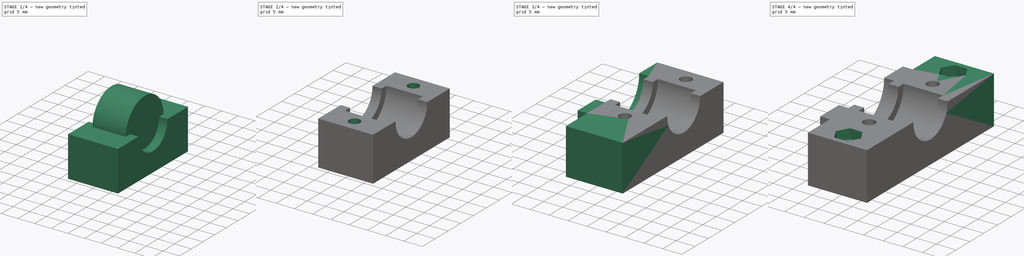
[diagram: build sequence overview — one tinted view per stage of 4, left to right]
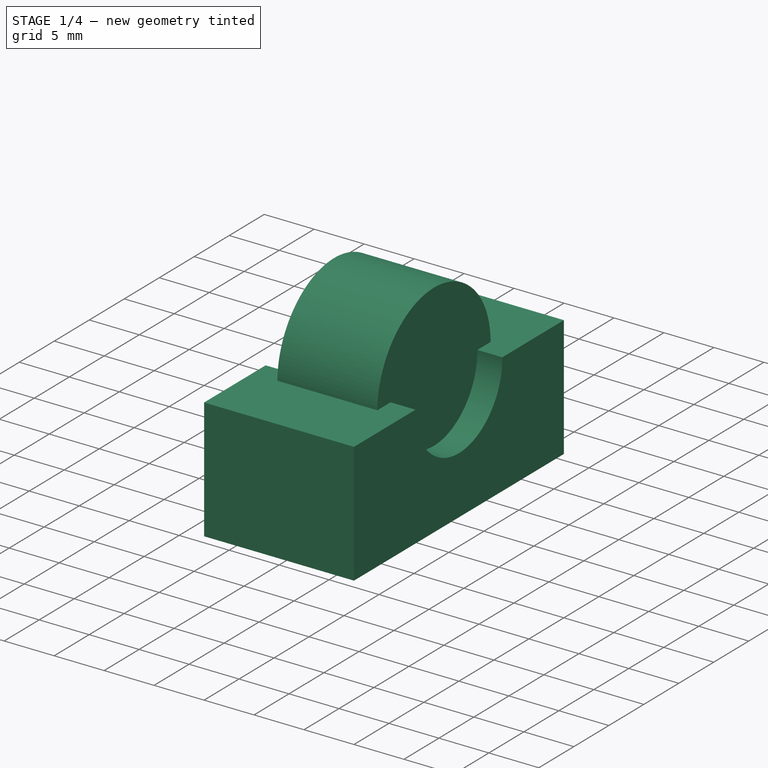
[diagram: stage 1 of 4 — iso view after this stage's code; geometry added in this stage tinted green]
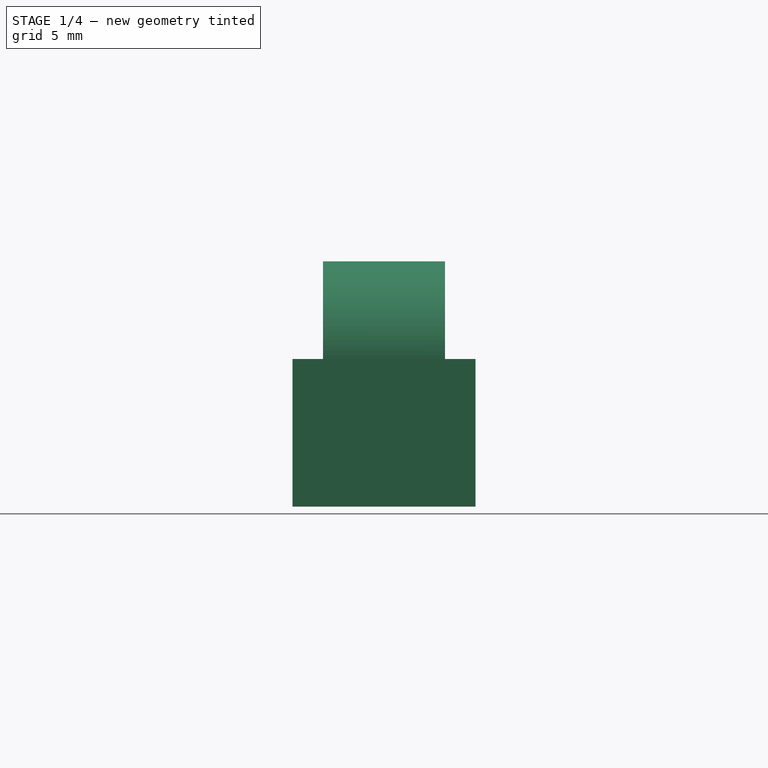
[diagram: stage 1 of 4 — front view after this stage's code; geometry added in this stage tinted green]
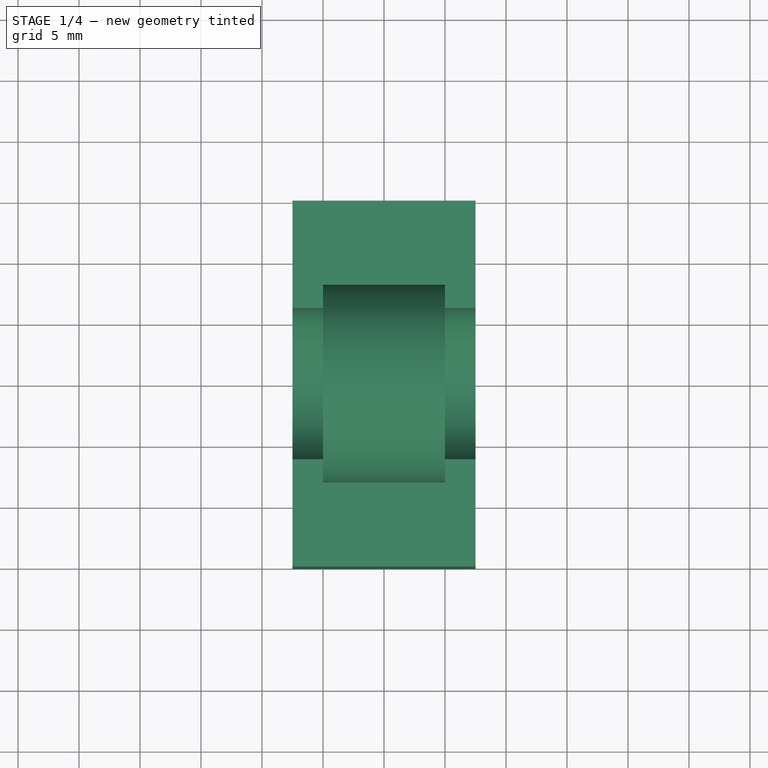
[diagram: stage 1 of 4 — top view after this stage's code; geometry added in this stage tinted green]
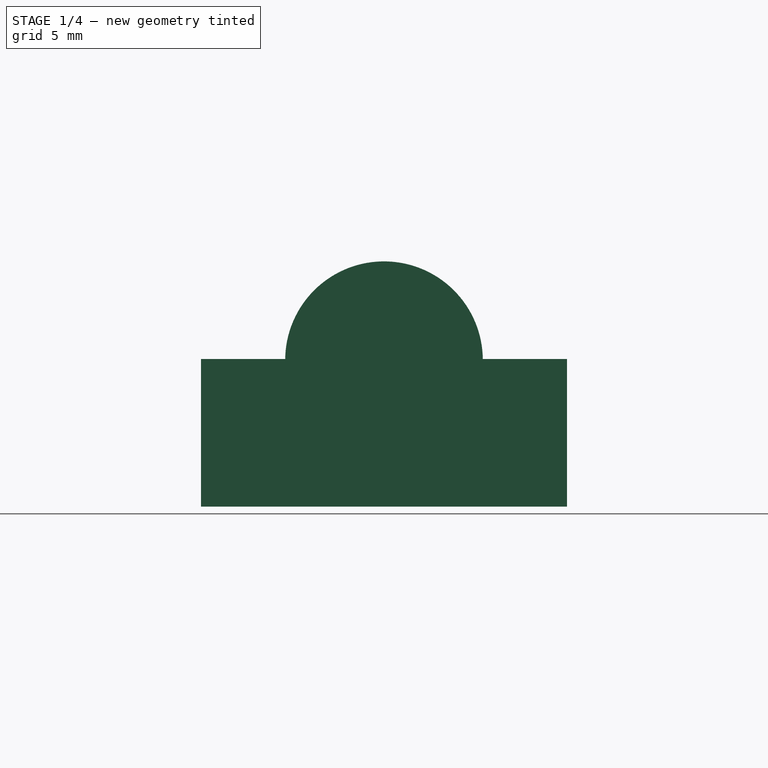
[diagram: stage 1 of 4 — right view after this stage's code; geometry added in this stage tinted green]
FCSTD DOCUMENT  (FreeCAD 0.16R6700 (Git))
Label: Bearing Support Botton
License: FreeArt
LicenseURL: http://artlibre.org/licence/lal
objects: Drawing::FeatureViewPython×23, Sketcher::SketchObject×11, PartDesign::Pocket×6, PartDesign::Pad×5, Drawing::FeatureViewPart×4, Part::Cut×1, Drawing::FeaturePage×1
note: 34 computed .brp shape members not serialized (recipe doc carries the construction recipe); baked Part::Feature solids carry a one-line shape summary decoded from their .brp

FEATURE [Sketcher::SketchObject] Sketch
  sketch-geometry (4):
    g0: LineSegment StartX=-7.5 StartY=15 StartZ=0 EndX=7.5 EndY=15 EndZ=0
    g1: LineSegment StartX=7.5 StartY=15 StartZ=0 EndX=7.5 EndY=-15 EndZ=0
    g2: LineSegment StartX=7.5 StartY=-15 StartZ=0 EndX=-7.5 EndY=-15 EndZ=0
    g3: LineSegment StartX=-7.5 StartY=-15 StartZ=0 EndX=-7.5 EndY=15 EndZ=0
  constraints (12):
    c: Coincident(g0,g1)
    c: Coincident(g1,g2)
    c: Coincident(g2,g3)
    c: Coincident(g3,g0)
    c: Horizontal(g2)
    c: Vertical(g1)
    c: Vertical(g3)
    c: Parallel(g0,g2)
    c: Symmetric(g0,g2,g-1)
    c: Symmetric(g0,g0,g-2)
    c: DistanceY(g3,g3) = 30
    c: DistanceX(g0,g0) = 15
FEATURE [PartDesign::Pad] Pad
  Length = 12.1
  Length2 = 100
  Sketch = -> Sketch
  Type = 0
FEATURE [Sketcher::SketchObject] Sketch001
  Placement = pos=(7.5,0,0) rot=(0.57735,0.57735,0.57735;2.0944rad)
  Support = -> Pad [Face2]
  sketch-geometry (1):
    g0: Circle CenterX=0 CenterY=12 CenterZ=0 NormalX=0 NormalY=0 NormalZ=1 Radius=6.2
  constraints (3):
    c: PointOnObject(g0,g-2)
    c: DistanceY(g-1,g0) = 12
    c: Radius(g0) = 6.2
FEATURE [PartDesign::Pocket] Pocket
  Length = 5
  Sketch = -> Sketch001
  Type = 1
FEATURE [Sketcher::SketchObject] Sketch002
  Placement = pos=(0,0,0) rot=(0.57735,0.57735,0.57735;2.0944rad)
  sketch-geometry (1):
    g0: Circle CenterX=0 CenterY=12 CenterZ=0 NormalX=0 NormalY=0 NormalZ=1 Radius=8.1
  constraints (3):
    c: PointOnObject(g0,g-2)
    c: DistanceY(g-1,g0) = 12
    c: Radius(g0) = 8.1
FEATURE [PartDesign::Pad] Pad001
  Length = 10
  Length2 = 100
  Midplane = true
  Placement = pos=(0,0,0) rot=(0.57735,0.57735,0.57735;2.0944rad)
  Sketch = -> Sketch002
  Type = 0
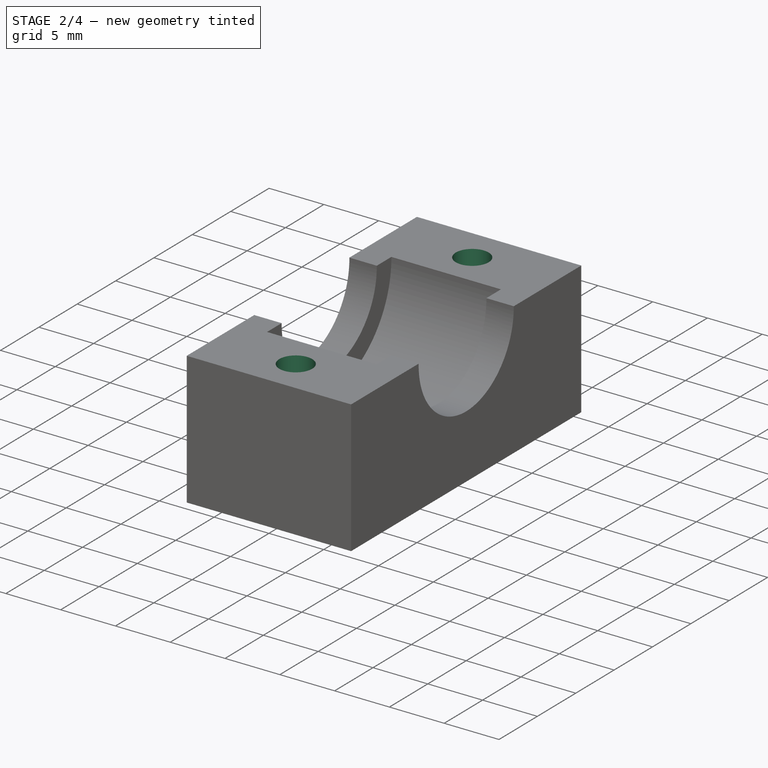
[diagram: stage 2 of 4 — iso view after this stage's code; geometry added in this stage tinted green]
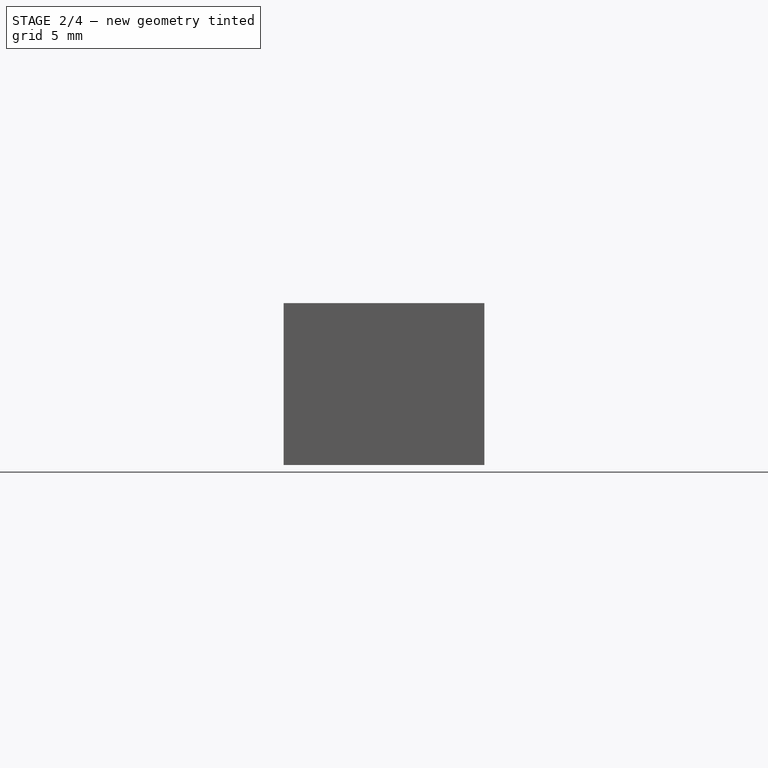
[diagram: stage 2 of 4 — front view after this stage's code; geometry added in this stage tinted green]
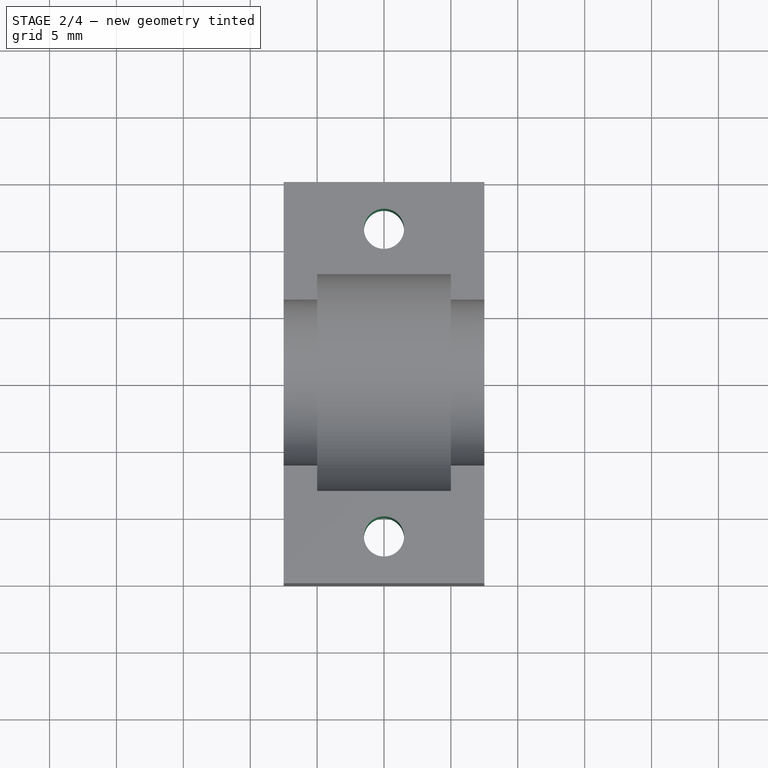
[diagram: stage 2 of 4 — top view after this stage's code; geometry added in this stage tinted green]
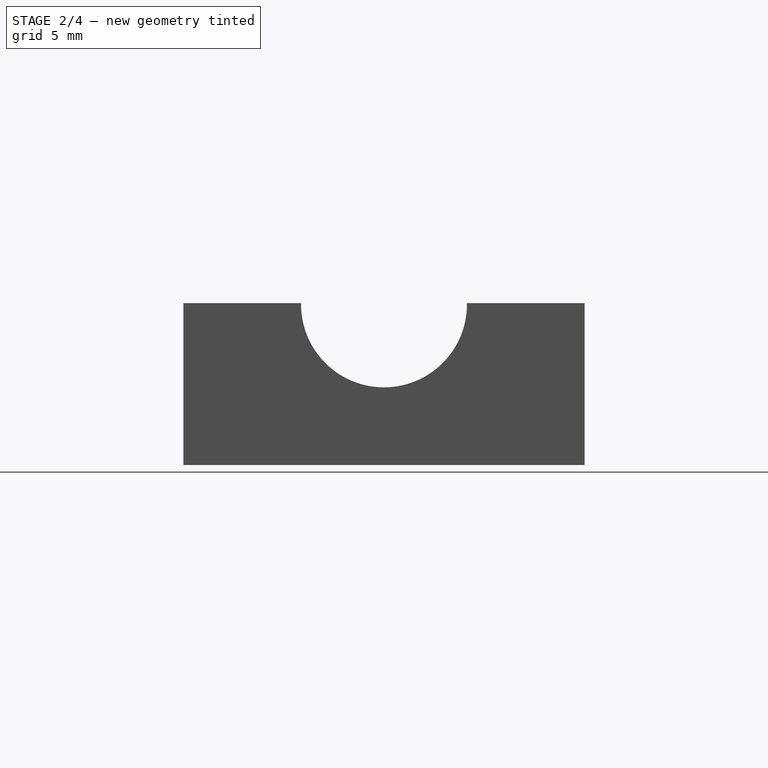
[diagram: stage 2 of 4 — right view after this stage's code; geometry added in this stage tinted green]
FEATURE [Part::Cut] Cut
  Base = -> Pocket
  Tool = -> Pad001
FEATURE [Sketcher::SketchObject] Sketch003
  Placement = pos=(0,0,0) rot=(1,0,0;3.14159rad)
  Support = -> Cut [Face4]
  sketch-geometry (2):
    g0: Circle CenterX=0 CenterY=11.5 CenterZ=0 NormalX=0 NormalY=0 NormalZ=1 Radius=1.5
    g1: Circle CenterX=0 CenterY=-11.5 CenterZ=0 NormalX=0 NormalY=0 NormalZ=1 Radius=1.5
  constraints (6):
    c: PointOnObject(g0,g-2)
    c: Distance(g-1,g0) = 11.5
    c: Radius(g0) = 1.5
    c: PointOnObject(g1,g-2)
    c: Distance(g-1,g1) = 11.5
    c: Radius(g1) = 1.5
FEATURE [PartDesign::Pocket] Pocket001
  Length = 5
  Sketch = -> Sketch003
  Type = 1
FEATURE [Sketcher::SketchObject] Sketch004
  Placement = pos=(0,0,0) rot=(1,0,0;3.14159rad)
  Support = -> Pocket001 [Face4]
  sketch-geometry (14):
    g0: LineSegment StartX=3.2 StartY=11.5 StartZ=0 EndX=1.6 EndY=14.2713 EndZ=0
    g1: LineSegment StartX=1.6 StartY=14.2713 StartZ=0 EndX=-1.6 EndY=14.2713 EndZ=0
    g2: LineSegment StartX=-1.6 StartY=14.2713 StartZ=0 EndX=-3.2 EndY=11.5 EndZ=0
    g3: LineSegment StartX=-3.2 StartY=11.5 StartZ=0 EndX=-1.6 EndY=8.72872 EndZ=0
    g4: LineSegment StartX=-1.6 StartY=8.72872 StartZ=0 EndX=1.6 EndY=8.72872 EndZ=0
    g5: LineSegment StartX=1.6 StartY=8.72872 StartZ=0 EndX=3.2 EndY=11.5 EndZ=0
    g6: Circle [constr] CenterX=0 CenterY=11.5 CenterZ=0 NormalX=0 NormalY=0 NormalZ=1 Radius=3.2
    g7: LineSegment StartX=1.6 StartY=-14.2713 StartZ=0 EndX=3.2 EndY=-11.5 EndZ=0
    g8: LineSegment StartX=3.2 StartY=-11.5 StartZ=0 EndX=1.6 EndY=-8.72872 EndZ=0
    g9: LineSegment StartX=1.6 StartY=-8.72872 StartZ=0 EndX=-1.6 EndY=-8.72872 EndZ=0
    g10: LineSegment StartX=-1.6 StartY=-8.72872 StartZ=0 EndX=-3.2 EndY=-11.5 EndZ=0
    g11: LineSegment StartX=-3.2 StartY=-11.5 StartZ=0 EndX=-1.6 EndY=-14.2713 EndZ=0
    g12: LineSegment StartX=-1.6 StartY=-14.2713 StartZ=0 EndX=1.6 EndY=-14.2713 EndZ=0
    g13: Circle [constr] CenterX=0 CenterY=-11.5 CenterZ=0 NormalX=0 NormalY=0 NormalZ=1 Radius=3.2
  constraints (34):
    c: Coincident(g0,g1)
    c: Coincident(g1,g2)
    c: Coincident(g2,g3)
    c: Coincident(g3,g4)
    c: Coincident(g4,g5)
    c: Coincident(g5,g0)
    c: Equal(g0, g1-g5) x5
    c: PointOnObject(g0,g6)
    c: PointOnObject(g1,g6)
    c: PointOnObject(g2,g6)
    c: PointOnObject(g3,g6)
    c: PointOnObject(g4,g6)
    c: PointOnObject(g5,g6)
    c: PointOnObject(g6,g-2)
    c: Distance(g-1,g6) = 11.5
    c: Parallel(g-1,g4)
    c: Radius(g6) = 3.2
    c: Coincident(g7,g8)
    c: Coincident(g8,g9)
    c: Coincident(g9,g10)
    c: Coincident(g10,g11)
    c: Coincident(g11,g12)
    c: Coincident(g12,g7)
    c: Equal(g7, g8-g12) x5
    c: PointOnObject(g7,g13)
    c: PointOnObject(g8,g13)
    c: PointOnObject(g9,g13)
    c: PointOnObject(g10,g13)
    c: PointOnObject(g11,g13)
    c: PointOnObject(g12,g13)
    c: PointOnObject(g13,g-2)
    c: Distance(g-1,g13) = 11.5
    c: Parallel(g9,g-1)
    c: Radius(g13) = 3.2
FEATURE [PartDesign::Pocket] Pocket002
  Length = 2.5
  Sketch = -> Sketch004
  Type = 0
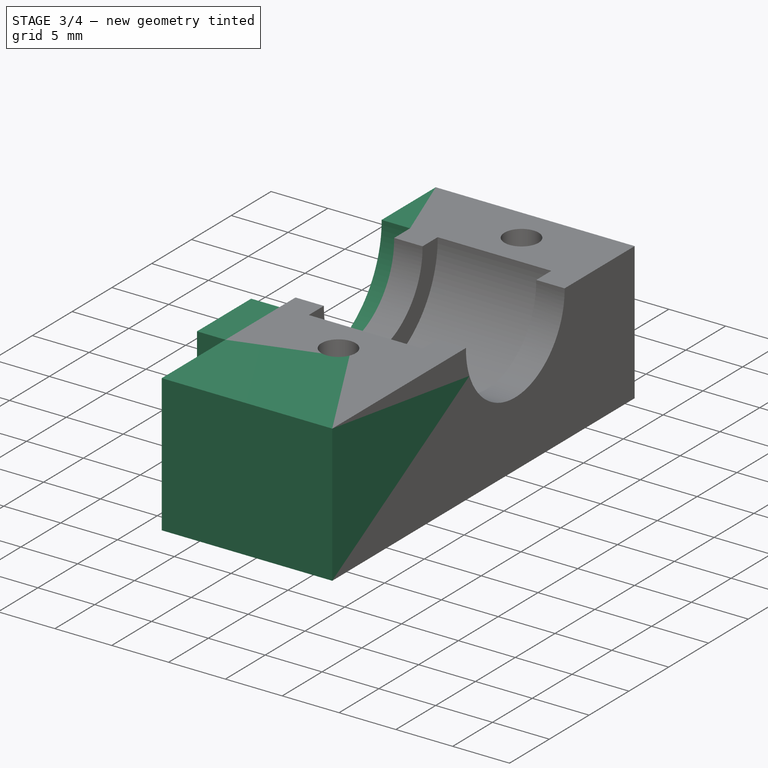
[diagram: stage 3 of 4 — iso view after this stage's code; geometry added in this stage tinted green]
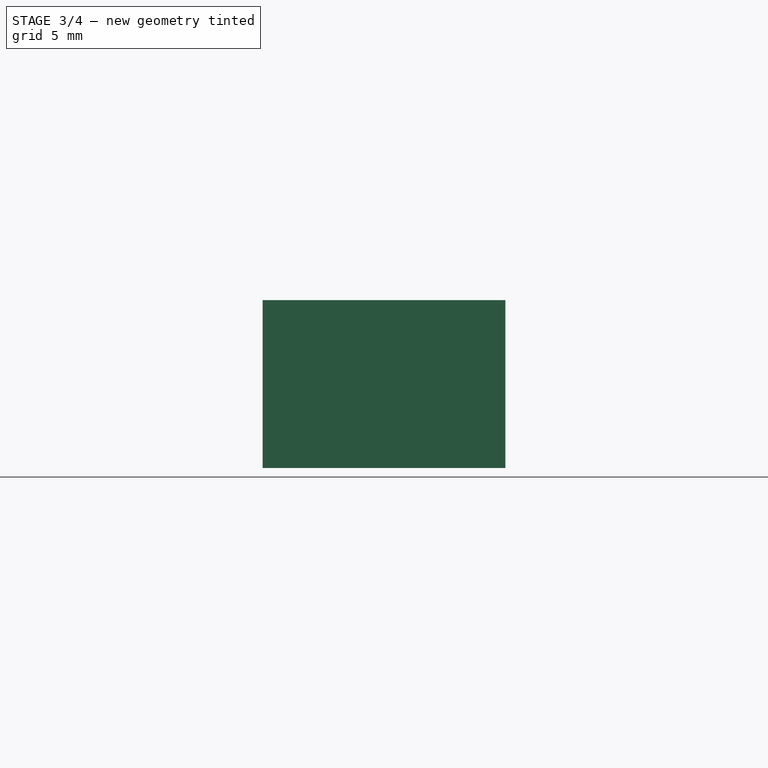
[diagram: stage 3 of 4 — front view after this stage's code; geometry added in this stage tinted green]
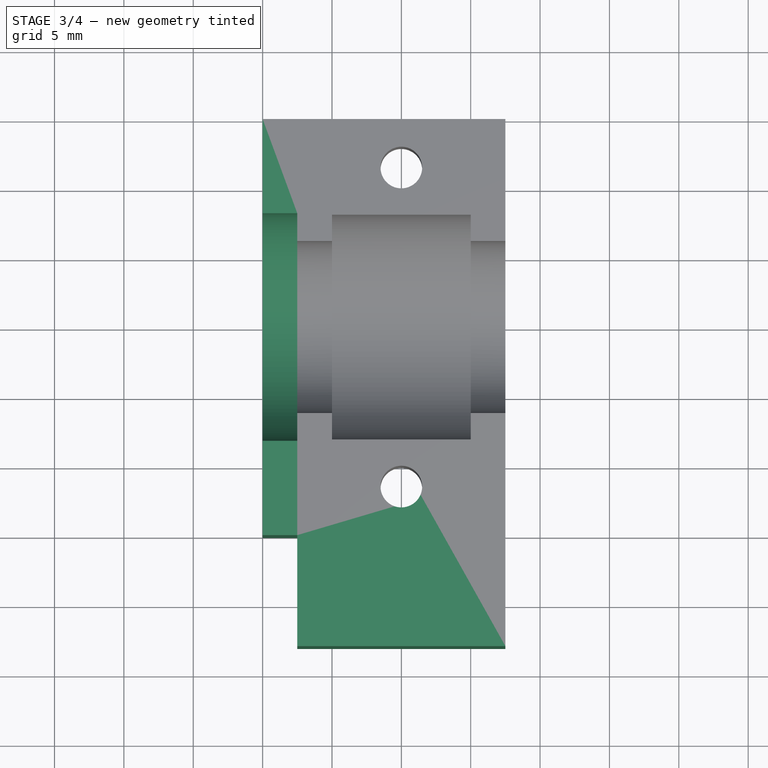
[diagram: stage 3 of 4 — top view after this stage's code; geometry added in this stage tinted green]
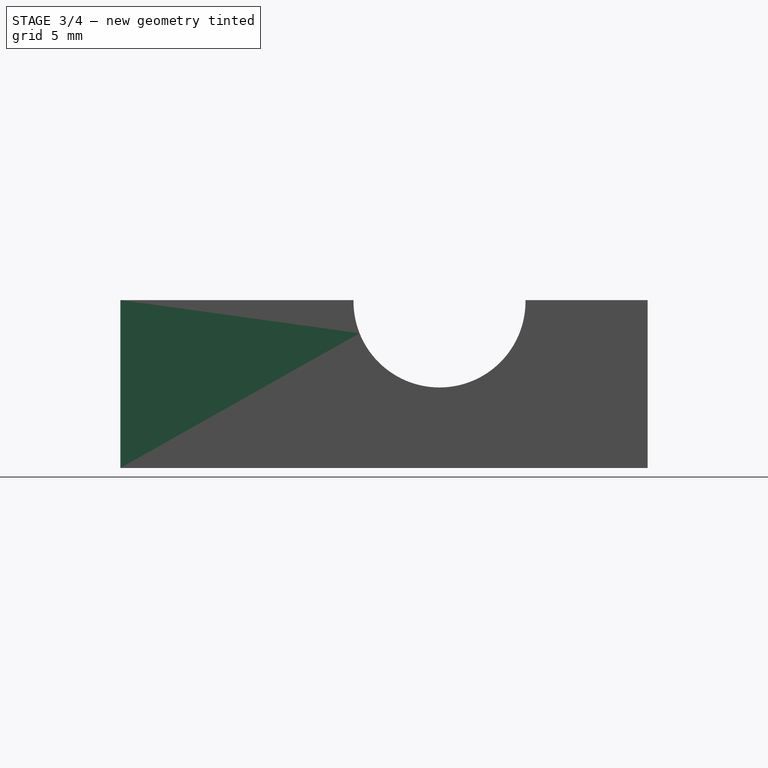
[diagram: stage 3 of 4 — right view after this stage's code; geometry added in this stage tinted green]
FEATURE [Sketcher::SketchObject] Sketch005
  Placement = pos=(-7.5,0,0) rot=(0.57735,-0.57735,-0.57735;2.0944rad)
  Support = -> Pocket002 [Face2]
  sketch-geometry (4):
    g0: LineSegment StartX=-15 StartY=12.1 StartZ=0 EndX=15 EndY=12.1 EndZ=0
    g1: LineSegment StartX=15 StartY=12.1 StartZ=0 EndX=15 EndY=0 EndZ=0
    g2: LineSegment StartX=15 StartY=0 StartZ=0 EndX=-15 EndY=0 EndZ=0
    g3: LineSegment StartX=-15 StartY=0 StartZ=0 EndX=-15 EndY=12.1 EndZ=0
  constraints (14):
    c: Coincident(g0,g1)
    c: Coincident(g1,g2)
    c: Coincident(g2,g3)
    c: Coincident(g3,g0)
    c: Horizontal(g0)
    c: Horizontal(g2)
    c: Vertical(g1)
    c: Vertical(g3)
    c: Equal(g2,g0)
    c: Equal(g3,g1)
    c: Symmetric(g1,g2,g-2)
    c: PointOnObject(g2,g-1)
    c: DistanceX(g2,g2) = 30
    c: DistanceY(g1,g1) = 12.1
FEATURE [PartDesign::Pad] Pad002
  Length = 2.5
  Length2 = 100
  Sketch = -> Sketch005
  Type = 0
FEATURE [Sketcher::SketchObject] Sketch006
  Placement = pos=(-10,0,0) rot=(0.57735,-0.57735,-0.57735;2.0944rad)
  Support = -> Pad002 [Face9]
  sketch-geometry (1):
    g0: Circle CenterX=0 CenterY=12.0166 CenterZ=0 NormalX=0 NormalY=0 NormalZ=1 Radius=8.2
  constraints (2):
    c: PointOnObject(g0,g-2)
    c: Radius(g0) = 8.2
FEATURE [PartDesign::Pocket] Pocket003
  Length = 2.5
  Sketch = -> Sketch006
  Type = 0
FEATURE [Sketcher::SketchObject] Sketch007
  Placement = pos=(0,-15,0) rot=(1,0,0;1.5708rad)
  Support = -> Pocket003 [Face7]
  sketch-geometry (4):
    g0: LineSegment StartX=-7.5 StartY=12.1 StartZ=0 EndX=7.5 EndY=12.1 EndZ=0
    g1: LineSegment StartX=7.5 StartY=12.1 StartZ=0 EndX=7.5 EndY=0 EndZ=0
    g2: LineSegment StartX=7.5 StartY=0 StartZ=0 EndX=-7.5 EndY=0 EndZ=0
    g3: LineSegment StartX=-7.5 StartY=0 StartZ=0 EndX=-7.5 EndY=12.1 EndZ=0
  constraints (13):
    c: Coincident(g0,g1)
    c: Coincident(g1,g2)
    c: Coincident(g2,g3)
    c: Coincident(g3,g0)
    c: Horizontal(g0)
    c: Vertical(g1)
    c: Vertical(g3)
    c: Equal(g2,g0)
    c: Equal(g3,g1)
    c: PointOnObject(g1,g-1)
    c: Symmetric(g1,g2,g-2)
    c: DistanceY(g1,g1) = 12.1
    c: DistanceX(g2,g2) = 15
FEATURE [PartDesign::Pad] Pad003
  Length = 8
  Length2 = 100
  Sketch = -> Sketch007
  Type = 0
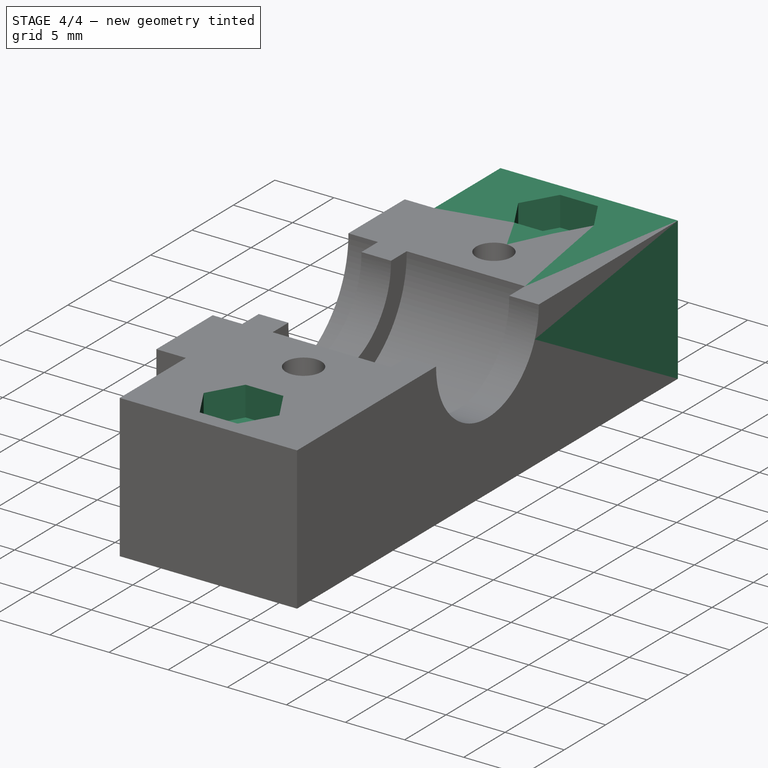
[diagram: stage 4 of 4 — iso view after this stage's code; geometry added in this stage tinted green]
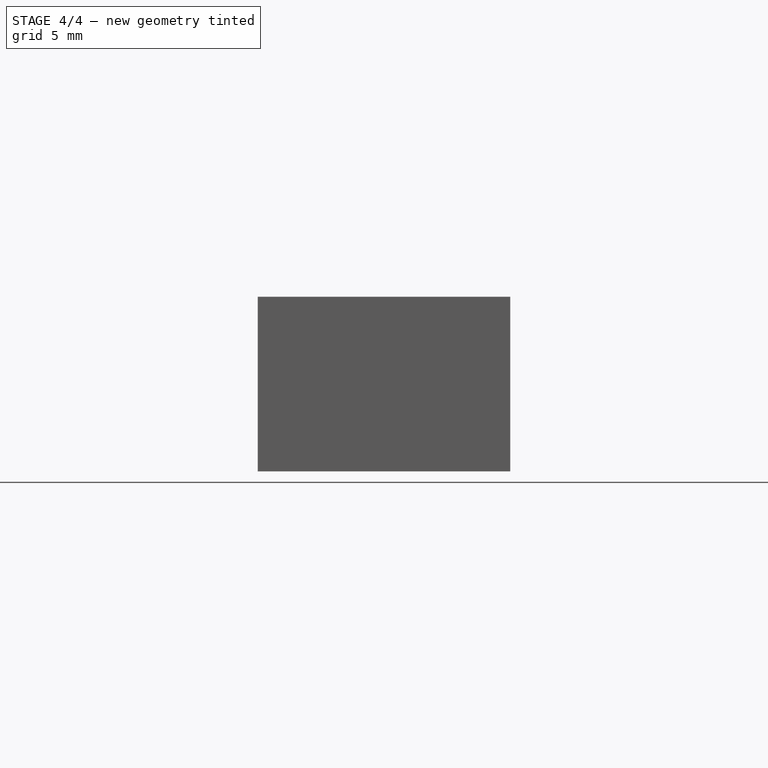
[diagram: stage 4 of 4 — front view after this stage's code; geometry added in this stage tinted green]
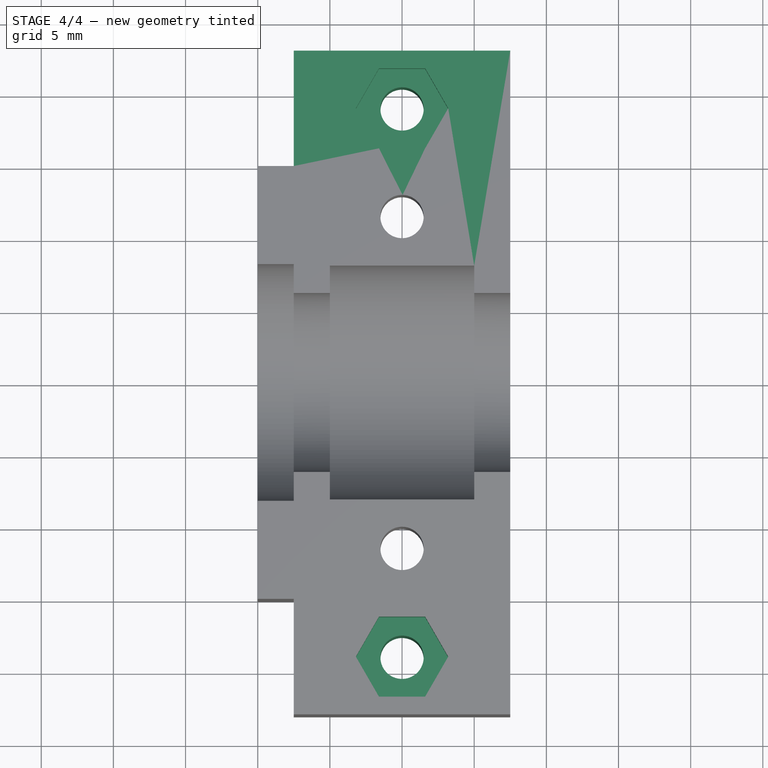
[diagram: stage 4 of 4 — top view after this stage's code; geometry added in this stage tinted green]
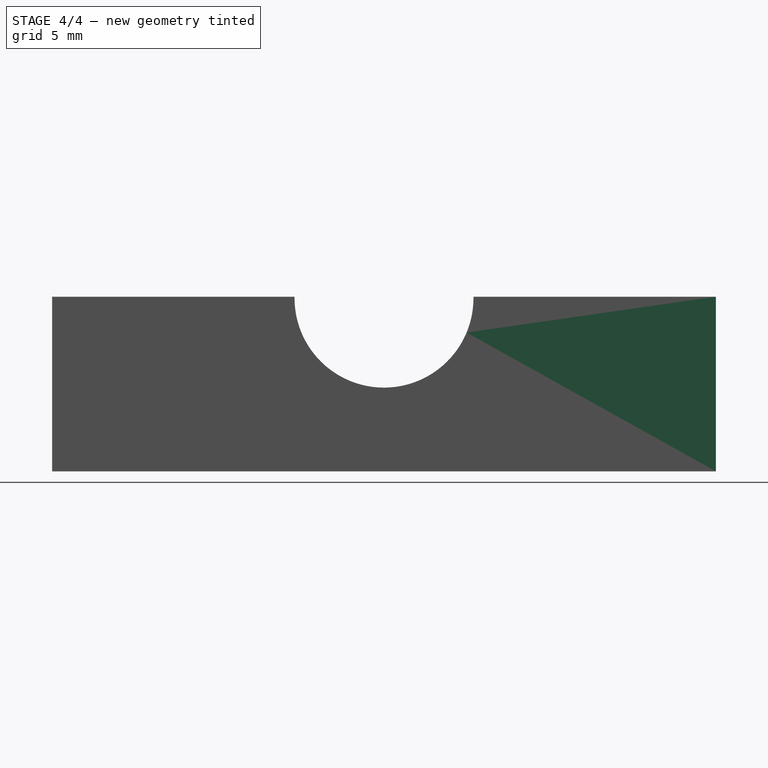
[diagram: stage 4 of 4 — right view after this stage's code; geometry added in this stage tinted green]
FEATURE [Sketcher::SketchObject] Sketch008
  Placement = pos=(0,15,0) rot=(0,0.707107,0.707107;3.14159rad)
  Support = -> Pad003 [Face11]
  sketch-geometry (4):
    g0: LineSegment StartX=-7.5 StartY=12.1 StartZ=0 EndX=7.5 EndY=12.1 EndZ=0
    g1: LineSegment StartX=7.5 StartY=12.1 StartZ=0 EndX=7.5 EndY=0 EndZ=0
    g2: LineSegment StartX=7.5 StartY=0 StartZ=0 EndX=-7.5 EndY=0 EndZ=0
    g3: LineSegment StartX=-7.5 StartY=0 StartZ=0 EndX=-7.5 EndY=12.1 EndZ=0
  constraints (14):
    c: Coincident(g0,g1)
    c: Coincident(g1,g2)
    c: Coincident(g2,g3)
    c: Coincident(g3,g0)
    c: Horizontal(g0)
    c: Horizontal(g2)
    c: Vertical(g1)
    c: Vertical(g3)
    c: Equal(g2,g0)
    c: Equal(g3,g1)
    c: PointOnObject(g1,g-1)
    c: Symmetric(g2,g1,g-2)
    c: DistanceY(g3,g3) = 12.1
    c: DistanceX(g2,g2) = 15
FEATURE [PartDesign::Pad] Pad004
  Length = 8
  Length2 = 100
  Sketch = -> Sketch008
  Type = 0
FEATURE [Sketcher::SketchObject] Sketch009
  Placement = pos=(0,0,12.1) rot=(0,0,1;0rad)
  Support = -> Pad004 [Face24]
  sketch-geometry (4):
    g0: LineSegment [constr] StartX=-2.88524 StartY=23 StartZ=0 EndX=2.85423 EndY=23 EndZ=0
    g1: LineSegment [constr] StartX=-2.88524 StartY=-23 StartZ=0 EndX=2.85423 EndY=-23 EndZ=0
    g2: Circle CenterX=0 CenterY=-19 CenterZ=0 NormalX=0 NormalY=0 NormalZ=1 Radius=1.5
    g3: Circle CenterX=0 CenterY=19 CenterZ=0 NormalX=0 NormalY=0 NormalZ=1 Radius=1.5
  constraints (10):
    c: Horizontal(g0)
    c: Horizontal(g1)
    c: Symmetric(g1,g0,g-1)
    c: Distance(g-1,g1) = 23
    c: PointOnObject(g2,g-2)
    c: PointOnObject(g3,g-2)
    c: Radius(g3) = 1.5
    c: Radius(g2) = 1.5
    c: Symmetric(g2,g3,g-1)
    c: Distance(g2,g1) = 4
FEATURE [PartDesign::Pocket] Pocket004
  Length = 5
  Sketch = -> Sketch009
  Type = 1
FEATURE [Sketcher::SketchObject] Sketch010
  Placement = pos=(0,0,12.1) rot=(0,0,1;0rad)
  Support = -> Pocket004 [Face5]
  sketch-geometry (16):
    g0: LineSegment [constr] StartX=-1.89208 StartY=23 StartZ=0 EndX=2.2872 EndY=23 EndZ=0
    g1: LineSegment [constr] StartX=-1.98458 StartY=-23 StartZ=0 EndX=2.2872 EndY=-23 EndZ=0
    g2: LineSegment StartX=1.6 StartY=-21.7713 StartZ=0 EndX=3.2 EndY=-19 EndZ=0
    g3: LineSegment StartX=3.2 StartY=-19 StartZ=0 EndX=1.6 EndY=-16.2287 EndZ=0
    g4: LineSegment StartX=1.6 StartY=-16.2287 StartZ=0 EndX=-1.6 EndY=-16.2287 EndZ=0
    g5: LineSegment StartX=-1.6 StartY=-16.2287 StartZ=0 EndX=-3.2 EndY=-19 EndZ=0
    g6: LineSegment StartX=-3.2 StartY=-19 StartZ=0 EndX=-1.6 EndY=-21.7713 EndZ=0
    g7: LineSegment StartX=-1.6 StartY=-21.7713 StartZ=0 EndX=1.6 EndY=-21.7713 EndZ=0
    g8: Circle [constr] CenterX=0 CenterY=-19 CenterZ=0 NormalX=0 NormalY=0 NormalZ=1 Radius=3.2
    g9: LineSegment StartX=1.6 StartY=16.2287 StartZ=0 EndX=3.2 EndY=19 EndZ=0
    g10: LineSegment StartX=3.2 StartY=19 StartZ=0 EndX=1.6 EndY=21.7713 EndZ=0
    g11: LineSegment StartX=1.6 StartY=21.7713 StartZ=0 EndX=-1.6 EndY=21.7713 EndZ=0
    g12: LineSegment StartX=-1.6 StartY=21.7713 StartZ=0 EndX=-3.2 EndY=19 EndZ=0
    g13: LineSegment StartX=-3.2 StartY=19 StartZ=0 EndX=-1.6 EndY=16.2287 EndZ=0
    g14: LineSegment StartX=-1.6 StartY=16.2287 StartZ=0 EndX=1.6 EndY=16.2287 EndZ=0
    g15: Circle [constr] CenterX=0 CenterY=19 CenterZ=0 NormalX=0 NormalY=0 NormalZ=1 Radius=3.2
  constraints (38):
    c: Horizontal(g0)
    c: Horizontal(g1)
    c: Symmetric(g0,g1,g-1)
    c: Distance(g-1,g1) = 23
    c: Coincident(g2,g3)
    c: Coincident(g3,g4)
    c: Coincident(g4,g5)
    c: Coincident(g5,g6)
    c: Coincident(g6,g7)
    c: Coincident(g7,g2)
    c: Equal(g2, g3-g7) x5
    c: PointOnObject(g2,g8)
    c: PointOnObject(g3,g8)
    c: PointOnObject(g4,g8)
    c: PointOnObject(g5,g8)
    c: PointOnObject(g6,g8)
    c: PointOnObject(g7,g8)
    c: PointOnObject(g8,g-2)
    c: Parallel(g7,g1)
    c: Distance(g8,g1) = 4
    c: Radius(g8) = 3.2
    c: Coincident(g9,g10)
    c: Coincident(g10,g11)
    c: Coincident(g11,g12)
    c: Coincident(g12,g13)
    c: Coincident(g13,g14)
    c: Coincident(g14,g9)
    c: Equal(g9, g10-g14) x5
    c: PointOnObject(g9,g15)
    c: PointOnObject(g10,g15)
    c: PointOnObject(g11,g15)
    c: PointOnObject(g12,g15)
    c: PointOnObject(g13,g15)
    c: PointOnObject(g14,g15)
    c: PointOnObject(g15,g-2)
    c: Distance(g15,g0) = 4
    c: Parallel(g11,g0)
    c: Radius(g15) = 3.2
FEATURE [PartDesign::Pocket] Pocket005
  Length = 2.5
  Sketch = -> Sketch010
  Type = 0
FEATURE [Drawing::FeatureViewPart] Ortho  label="Ortho_0_0"
  Direction = (0,0,1)
  HiddenWidth = 0.15
  LineWidth = 0.35
  Rotation = 0
  Scale = 2
  ShowHiddenLines = false
  ShowSmoothLines = false
  Source = -> Pocket005
  Tolerance = 0.05
  ViewResult = <blob: 5016 chars omitted>
  Visible = true
  X = 117.64
  Y = 81.5
FEATURE [Drawing::FeatureViewPart] Ortho001  label="Ortho_1_0"
  Direction = (1,0,0)
  HiddenWidth = 0.15
  LineWidth = 0.35
  Rotation = 180
  Scale = 2
  ShowHiddenLines = false
  ShowSmoothLines = false
  Source = -> Pocket005
  Tolerance = 0.05
  ViewResult = <g id="Ortho_1_0"\n   transform="rotate(180,188.56,81.5) translate(188.56,81.5) scale(2,2)"\n  >\n<g   stroke="rgb(0, 0, 0)"\n   stroke-width="0.175"\n   stroke-linecap="butt"\n   stroke-linejoin="miter"\n   fill="none"\n   transform="scale(1,-1)"\n  >\n<path id= "1" d=" M 12.1 6.19919 L 12.1 23 " />\n<path id= "2" d=" M 12.1 -23 L 12.1 -6.19919 " />\n<path d="M12.1 6.19919 A6.2 6.2 0 1 1 12 -6.2" /><path d="M12 -6.2 A6.2 6.2 0 0 1 12.1 -6.19919" /><path id= "5" d=" M 12.1 23 L 1.77636e-015 23 " />\n<path id= "6" d=" M -8.43769e-015 -23 L 1.77636e-015 23 " />\n<path id= "7" d=" M -1.77636e-015 -23 L 12.1 -23 " />\n</g>\n</g>
  Visible = true
  X = 188.56
  Y = 81.5
FEATURE [Drawing::FeatureViewPart] Ortho002  label="Ortho_2_0"
  Direction = (0,0,-1)
  HiddenWidth = 0.15
  LineWidth = 0.35
  Rotation = 0
  Scale = 2
  ShowHiddenLines = false
  ShowSmoothLines = false
  Source = -> Pocket005
  Tolerance = 0.05
  ViewResult = <g id="Ortho_2_0"\n   transform="rotate(-7.01671e-015,235.28,81.5) translate(235.28,81.5) scale(2,2)"\n  >\n<g   stroke="rgb(0, 0, 0)"\n   stroke-width="0.175"\n   stroke-linecap="butt"\n   stroke-linejoin="miter"\n   fill="none"\n   transform="scale(1,-1)"\n  >\n<path id= "1" d=" M 10 -15 L 10 15 " />\n<path id= "2" d=" M 7.5 -15 L 10 -15 " />\n<path id= "3" d=" M 7.5 -15 L 7.5 -23 " />\n<path d="M-7.5,-6.2 L-7.5,-6.04455  L-7.5,-5.58601  L-7.5,-4.84736  L-7.5,-3.86564  L-7.5,-2.69008  L-7.5,-1.37963  L-7.5,9.87449e-015  L-7.5,1.37963  L-7.5,2.69008  L-7.5,3.86564  L-7.5,4.84736  L-7.5,5.58601  L-7.5,6.04455  L-7.5,6.2 " /><path id= "5" d=" M -7.5 -23 L 7.5 -23 " />\n<path id= "6" d=" M -7.5 23 L -7.5 -23 " />\n<circle cx ="0" cy ="-11.5" r ="1.5" /><path id= "8" d=" M 7.5 15 L 10 15 " />\n<path id= "9" d=" M 7.5 15 L 7.5 23 " />\n<path id= "10" d=" M 7.5 23 L -7.5 23 " />\n<circle cx ="0" cy ="11.5" r ="1.5" /><circle cx ="0" cy ="19" r ="1.5" /><path id= "13" d=" M -1.6 14.2713 L -3.2 11.5 " />\n<path id= "14" d=" M 1.6 14.2713 L -1.6 14.2713 " />\n<path id= "15" d=" M -3.2 11.5 L -1.6 8.72872 " />\n<path id= "16" d=" M 3.2 11.5 L 1.6 14.2713 " />\n<path id= "17" d=" M -1.6 8.72872 L 1.6 8.72872 " />\n<path id= "18" d=" M 1.6 8.72872 L 3.2 11.5 " />\n<path id= "19" d=" M 1.6 -14.2713 L 3.2 -11.5 " />\n<path id= "20" d=" M -1.6 -14.2713 L 1.6 -14.2713 " />\n<path id= "21" d=" M 3.2 -11.5 L 1.6 -8.72872 " />\n<path id= "22" d=" M -3.2 -11.5 L -1.6 -14.2713 " />\n<path id= "23" d=" M 1.6 -8.72872 L -1.6 -8.72872 " />\n<path id= "24" d=" M -1.6 -8.72872 L -3.2 -11.5 " />\n<circle cx ="0" cy ="-19" r ="1.5" /><path id= "26" d=" M 1.6 -14.2713 L 3.2 -11.5 " />\n<path id= "27" d=" M -1.6 14.2713 L -3.2 11.5 " />\n</g>\n</g>
  Visible = true
  X = 235.28
  Y = 81.5
FEATURE [Drawing::FeatureViewPart] Ortho003  label="Ortho_-1_0"
  Direction = (-1,0,0)
  HiddenWidth = 0.15
  LineWidth = 0.35
  Rotation = 180
  Scale = 2
  ShowHiddenLines = false
  ShowSmoothLines = false
  Source = -> Pocket005
  Tolerance = 0.05
  ViewResult = <g id="Ortho_-1_0"\n   transform="rotate(180,31.72,81.5) translate(31.72,81.5) scale(2,2)"\n  >\n<g   stroke="rgb(0, 0, 0)"\n   stroke-width="0.175"\n   stroke-linecap="butt"\n   stroke-linejoin="miter"\n   fill="none"\n   transform="scale(1,-1)"\n  >\n<path d="M-12.1 6.19919 A6.2 6.2 0 1 0 -12 -6.2" /><path d="M-12 -6.2 A6.2 6.2 0 0 0 -12.1 -6.19919" /><path id= "3" d=" M -12.1 6.19919 L -12.1 8.19958 " />\n<path id= "4" d=" M -12.1 8.19958 L -12.1 15 " />\n<path id= "5" d=" M -12.1 15 L -12.1 23 " />\n<path id= "6" d=" M -12.1 19 L -12.1 16.2287 " />\n<path d="M-12.0166 8.2 A8.2 8.2 0 0 1 -12.1 8.19958" /><path id= "8" d=" M -12.1 -8.19958 L -12.1 -6.19919 " />\n<path id= "9" d=" M -12.1 -15 L -12.1 -8.19958 " />\n<path id= "10" d=" M -12.1 -15 L -12.1 -23 " />\n<path id= "11" d=" M -12.1 -19 L -12.1 -21.7713 " />\n<path d="M-12.0166 8.2 A8.2 8.2 0 0 1 -12.1 8.19958" /><path d="M-12.1 -8.19958 A8.2 8.2 0 1 1 -12.0166 8.2" /><path id= "14" d=" M -12.1 15 L 0 15 " />\n<path id= "15" d=" M 0 15 L 0 -15 " />\n<path id= "16" d=" M 0 -15 L -12.1 -15 " />\n<path id= "17" d=" M 0 15 L -1.77636e-015 23 " />\n<path id= "18" d=" M -1.77636e-015 23 L -12.1 23 " />\n<path id= "19" d=" M -12.1 -23 L 1.77636e-015 -23 " />\n<path id= "20" d=" M 0 -15 L 1.77636e-015 -23 " />\n<path d="M8.88178e-015,-20.5 L8.88178e-015,-20.4624  L8.88178e-015,-20.3515  L8.88178e-015,-20.1727  L8.88178e-015,-19.9352  L8.88178e-015,-19.6508  L8.88178e-015,-19.3338  L8.88178e-015,-19  L8.88178e-015,-18.6662  L8.88178e-015,-18.3492  L8.88178e-015,-18.0648  L8.88178e-015,-17.8273  L8.88178e-015,-17.6485  L8.88178e-015,-17.5376  L8.88178e-015,-17.5 " /></g>\n</g>
  Visible = true
  X = 31.72
  Y = 81.5
FEATURE [Drawing::FeatureViewPython] dimStack001  # drawing view (typed FeaturePython)
  Rotation = 0
  ViewResult = <blob: 3507 chars omitted>
  Visible = true
  X = 0
  Y = 0
  arrowL1 = 3
  arrowL2 = 1
  arrowW = 2
  arrow_scheme = 0
  autoPlaceOffset = 2
  click1_x = 124.335
  click1_y = 135.638
  comma_decimal_place = false
  dimension_line_overshoot = 1
  gap_datum_points = 2
  lineColor = rgb(0,0,255)
  stack_offset = 7
  stack_offset0 = 0
  strokeWidth = 0.5
  textFormat_linear = %(value)3.3f
  textRenderer_color = rgb(0,0,255)
  textRenderer_family = inherit
  textRenderer_size = 3.6
  unit_custom_scale = 1
  unit_scheme = 0
FEATURE [Drawing::FeatureViewPython] rad003  # drawing view (typed FeaturePython)
  Rotation = 0
  ViewResult = <g>  <circle cx ="164.560433" cy ="81.500000" r="0.250000" stroke="none" fill="rgb(0,0,255)" /> \n<line x1="169.924110" y1="97.583913" x2="164.560433" y2="81.500000" style="stroke:rgb(0,0,255);stroke-width:0.50" />\n<polygon points="168.483219,93.263152 168.482799,90.100874 167.217804,89.468587 166.585517,90.733582" style="fill:rgb(0,0,255);stroke:rgb(0,0,255);stroke-width:0" />\n<line x1="169.924110" y1="97.583913" x2="180.473722" y2="97.583913" style="stroke:rgb(0,0,255);stroke-width:0.50" />\n<text x="175.198916" y="95.583913" font-family="inherit" font-size="3.6" fill="rgb(0,0,255)" text-anchor="middle" transform="rotate(0.000000 175.198916,95.583913)" >R6.2</text> </g>
  Visible = true
  X = 0
  Y = 0
  arrowL1 = 3
  arrowL2 = 1
  arrowW = 2
  arrow_scheme = 0
  autoPlaceOffset = 2
  autoPlaceText = true
  centerPointDia = 0.5
  click1_x = 169.924
  click1_y = 97.5839
  click2_x = 180.474
  click2_y = 97.2071
  click3_x = 180.474
  click3_y = 97.2071
  comma_decimal_place = false
  lineColor = rgb(0,0,255)
  strokeWidth = 0.5
  textFormat_radial = R%(value)3.3f
  textRenderer_color = rgb(0,0,255)
  textRenderer_family = inherit
  textRenderer_size = 3.6
  unit_custom_scale = 1
  unit_scheme = 0
FEATURE [Drawing::FeatureViewPython] rad004  # drawing view (typed FeaturePython)
  Rotation = 0
  ViewResult = <g>  <circle cx ="235.280000" cy ="119.500000" r="0.250000" stroke="none" fill="rgb(0,0,255)" /> \n<line x1="230.584380" y1="116.045734" x2="235.280000" y2="119.500000" style="stroke:rgb(0,0,255);stroke-width:0.50" />\n<polygon points="232.863441,117.722293 231.039451,115.139066 229.641363,115.352016 229.854313,116.750105" style="fill:rgb(0,0,255);stroke:rgb(0,0,255);stroke-width:0" />\n<line x1="230.584380" y1="116.045734" x2="223.802487" y2="116.045734" style="stroke:rgb(0,0,255);stroke-width:0.50" />\n<text x="227.193433" y="114.045734" font-family="inherit" font-size="3.6" fill="rgb(0,0,255)" text-anchor="middle" transform="rotate(0.000000 227.193433,114.045734)" >R1.5</text> </g>
  Visible = true
  X = 0
  Y = 0
  arrowL1 = 3
  arrowL2 = 1
  arrowW = 2
  arrow_scheme = 0
  autoPlaceOffset = 2
  autoPlaceText = true
  centerPointDia = 0.5
  click1_x = 230.584
  click1_y = 116.046
  click2_x = 223.802
  click2_y = 116.423
  click3_x = 223.802
  click3_y = 116.423
  comma_decimal_place = false
  lineColor = rgb(0,0,255)
  strokeWidth = 0.5
  textFormat_radial = R%(value)3.3f
  textRenderer_color = rgb(0,0,255)
  textRenderer_family = inherit
  textRenderer_size = 3.6
  unit_custom_scale = 1
  unit_scheme = 0
FEATURE [Drawing::FeatureViewPython] rad005  # drawing view (typed FeaturePython)
  Rotation = 0
  ViewResult = <g>  <circle cx ="235.280000" cy ="104.500000" r="0.250000" stroke="none" fill="rgb(0,0,255)" /> \n<line x1="227.193433" y1="98.714228" x2="235.280000" y2="104.500000" style="stroke:rgb(0,0,255);stroke-width:0.50" />\n<polygon points="232.840178,102.754357 230.982237,100.195441 229.587082,100.426834 229.818475,101.821989" style="fill:rgb(0,0,255);stroke:rgb(0,0,255);stroke-width:0" />\n<line x1="227.193433" y1="98.714228" x2="222.295399" y2="98.714228" style="stroke:rgb(0,0,255);stroke-width:0.50" />\n<text x="224.744416" y="96.714228" font-family="inherit" font-size="3.6" fill="rgb(0,0,255)" text-anchor="middle" transform="rotate(0.000000 224.744416,96.714228)" >R1.5</text> </g>
  Visible = true
  X = 0
  Y = 0
  arrowL1 = 3
  arrowL2 = 1
  arrowW = 2
  arrow_scheme = 0
  autoPlaceOffset = 2
  autoPlaceText = true
  centerPointDia = 0.5
  click1_x = 227.193
  click1_y = 98.7142
  click2_x = 222.295
  click2_y = 98.7142
  click3_x = 222.295
  click3_y = 98.7142
  comma_decimal_place = false
  lineColor = rgb(0,0,255)
  strokeWidth = 0.5
  textFormat_radial = R%(value)3.3f
  textRenderer_color = rgb(0,0,255)
  textRenderer_family = inherit
  textRenderer_size = 3.6
  unit_custom_scale = 1
  unit_scheme = 0
FEATURE [Drawing::FeatureViewPython] dim001  # drawing view (typed FeaturePython)
  Rotation = 0
  ViewResult = <g> \n  <line x1="240.480000" y1="98.957440" x2="248.539114" y2="98.957440" style="stroke:rgb(0,0,255);stroke-width:0.50" />\n<line x1="240.480000" y1="110.042600" x2="248.539114" y2="110.042600" style="stroke:rgb(0,0,255);stroke-width:0.50" />\n<line x1="247.539114" y1="98.957440" x2="247.539114" y2="110.042600" style="stroke:rgb(0,0,255);stroke-width:0.50" /> \n  <polygon points="247.539114,110.042600 248.539114,107.042600 247.539114,106.042600 246.539114,107.042600" style="fill:rgb(0,0,255);stroke:rgb(0,0,255);stroke-width:0" /><polygon points="247.539114,98.957440 246.539114,101.957440 247.539114,102.957440 248.539114,101.957440" style="fill:rgb(0,0,255);stroke:rgb(0,0,255);stroke-width:0" /> \n  <text x="245.539114" y="104.500020" font-family="inherit" font-size="3.6" fill="rgb(0,0,255)" text-anchor="middle" transform="rotate(-90.000000 245.539114,104.500020)" >5.543</text> </g>
  Visible = true
  X = 0
  Y = 0
  arrowL1 = 3
  arrowL2 = 1
  arrowW = 2
  arrow_scheme = 0
  autoPlaceOffset = 2
  autoPlaceText = true
  click1_x = 247.539
  click1_y = 108.134
  click2_x = 247.539
  click2_y = 108.134
  comma_decimal_place = false
  dimension_line_overshoot = 1
  gap_datum_points = 2
  halfDimension_linear = false
  lineColor = rgb(0,0,255)
  strokeWidth = 0.5
  textFormat_linear = %(value)3.3f
  textRenderer_color = rgb(0,0,255)
  textRenderer_family = inherit
  textRenderer_size = 3.6
  unit_custom_scale = 1
  unit_scheme = 0
FEATURE [Drawing::FeatureViewPython] dim002  # drawing view (typed FeaturePython)
  Rotation = 0
  ViewResult = <g> \n  <line x1="122.840000" y1="37.957400" x2="131.739837" y2="37.957400" style="stroke:rgb(0,0,255);stroke-width:0.50" />\n<line x1="122.840000" y1="49.042600" x2="131.739837" y2="49.042600" style="stroke:rgb(0,0,255);stroke-width:0.50" />\n<line x1="130.739837" y1="37.957400" x2="130.739837" y2="49.042600" style="stroke:rgb(0,0,255);stroke-width:0.50" /> \n  <polygon points="130.739837,49.042600 131.739837,46.042600 130.739837,45.042600 129.739837,46.042600" style="fill:rgb(0,0,255);stroke:rgb(0,0,255);stroke-width:0" /><polygon points="130.739837,37.957400 129.739837,40.957400 130.739837,41.957400 131.739837,40.957400" style="fill:rgb(0,0,255);stroke:rgb(0,0,255);stroke-width:0" /> \n  <text x="128.739837" y="43.500000" font-family="inherit" font-size="3.6" fill="rgb(0,0,255)" text-anchor="middle" transform="rotate(-90.000000 128.739837,43.500000)" >5.543</text> </g>
  Visible = true
  X = 0
  Y = 0
  arrowL1 = 3
  arrowL2 = 1
  arrowW = 2
  arrow_scheme = 0
  autoPlaceOffset = 2
  autoPlaceText = true
  click1_x = 130.74
  click1_y = 49.7339
  click2_x = 130.74
  click2_y = 49.7339
  comma_decimal_place = false
  dimension_line_overshoot = 1
  gap_datum_points = 2
  halfDimension_linear = false
  lineColor = rgb(0,0,255)
  strokeWidth = 0.5
  textFormat_linear = %(value)3.3f
  textRenderer_color = rgb(0,0,255)
  textRenderer_family = inherit
  textRenderer_size = 3.6
  unit_custom_scale = 1
  unit_scheme = 0
FEATURE [Drawing::FeatureViewPython] rad006  # drawing view (typed FeaturePython)
  Rotation = 0
  ViewResult = <g>  <circle cx ="235.280000" cy ="58.500000" r="0.250000" stroke="none" fill="rgb(0,0,255)" /> \n<line x1="231.337924" y1="55.008692" x2="235.280000" y2="58.500000" style="stroke:rgb(0,0,255);stroke-width:0.50" />\n<polygon points="233.034166,56.510973 231.451341,53.773334 230.039721,53.858936 230.125323,55.270556" style="fill:rgb(0,0,255);stroke:rgb(0,0,255);stroke-width:0" />\n<line x1="231.337924" y1="55.008692" x2="221.165084" y2="55.008692" style="stroke:rgb(0,0,255);stroke-width:0.50" />\n<text x="226.251504" y="53.008692" font-family="inherit" font-size="3.6" fill="rgb(0,0,255)" text-anchor="middle" transform="rotate(0.000000 226.251504,53.008692)" >R1.5</text> </g>
  Visible = true
  X = 0
  Y = 0
  arrowL1 = 3
  arrowL2 = 1
  arrowW = 2
  arrow_scheme = 0
  autoPlaceOffset = 2
  autoPlaceText = true
  centerPointDia = 0.5
  click1_x = 231.338
  click1_y = 55.0087
  click2_x = 221.165
  click2_y = 51.241
  click3_x = 221.165
  click3_y = 51.241
  comma_decimal_place = false
  lineColor = rgb(0,0,255)
  strokeWidth = 0.5
  textFormat_radial = R%(value)3.3f
  textRenderer_color = rgb(0,0,255)
  textRenderer_family = inherit
  textRenderer_size = 3.6
  unit_custom_scale = 1
  unit_scheme = 0
FEATURE [Drawing::FeatureViewPython] rad007  # drawing view (typed FeaturePython)
  Rotation = 0
  ViewResult = <g>  <circle cx ="235.280000" cy ="43.500000" r="0.250000" stroke="none" fill="rgb(0,0,255)" /> \n<line x1="230.207608" y1="40.691361" x2="235.280000" y2="43.500000" style="stroke:rgb(0,0,255);stroke-width:0.50" />\n<polygon points="232.655476,42.046772 230.515360,39.718703 229.156110,40.109135 229.546542,41.468386" style="fill:rgb(0,0,255);stroke:rgb(0,0,255);stroke-width:0" />\n<line x1="230.207608" y1="40.691361" x2="222.295399" y2="40.691361" style="stroke:rgb(0,0,255);stroke-width:0.50" />\n<text x="226.251504" y="38.691361" font-family="inherit" font-size="3.6" fill="rgb(0,0,255)" text-anchor="middle" transform="rotate(0.000000 226.251504,38.691361)" >R1.5</text> </g>
  Visible = true
  X = 0
  Y = 0
  arrowL1 = 3
  arrowL2 = 1
  arrowW = 2
  arrow_scheme = 0
  autoPlaceOffset = 2
  autoPlaceText = true
  centerPointDia = 0.5
  click1_x = 230.208
  click1_y = 40.6914
  click2_x = 222.295
  click2_y = 41.0681
  click3_x = 222.295
  click3_y = 41.0681
  comma_decimal_place = false
  lineColor = rgb(0,0,255)
  strokeWidth = 0.5
  textFormat_radial = R%(value)3.3f
  textRenderer_color = rgb(0,0,255)
  textRenderer_family = inherit
  textRenderer_size = 3.6
  unit_custom_scale = 1
  unit_scheme = 0
FEATURE [Drawing::FeatureViewPython] dimStack003  # drawing view (typed FeaturePython)
  Rotation = 0
  ViewResult = <blob: 2622 chars omitted>
  Visible = true
  X = 0
  Y = 0
  arrowL1 = 3
  arrowL2 = 1
  arrowW = 2
  arrow_scheme = 0
  autoPlaceOffset = 2
  click1_x = 264.117
  click1_y = 46.7197
  comma_decimal_place = false
  dimension_line_overshoot = 1
  gap_datum_points = 2
  lineColor = rgb(0,0,255)
  stack_offset = 7
  stack_offset0 = 0
  strokeWidth = 0.5
  textFormat_linear = %(value)3.3f
  textRenderer_color = rgb(0,0,255)
  textRenderer_family = inherit
  textRenderer_size = 3.6
  unit_custom_scale = 1
  unit_scheme = 0
FEATURE [Drawing::FeatureViewPython] dim003  # drawing view (typed FeaturePython)
  Rotation = 0
  ViewResult = <g> \n  <line x1="164.360000" y1="33.500000" x2="164.360000" y2="23.113399" style="stroke:rgb(0,0,255);stroke-width:0.50" />\n<line x1="188.560000" y1="33.500000" x2="188.560000" y2="23.113399" style="stroke:rgb(0,0,255);stroke-width:0.50" />\n<line x1="164.360000" y1="24.113399" x2="188.560000" y2="24.113399" style="stroke:rgb(0,0,255);stroke-width:0.50" /> \n  <polygon points="188.560000,24.113399 185.560000,23.113399 184.560000,24.113399 185.560000,25.113399" style="fill:rgb(0,0,255);stroke:rgb(0,0,255);stroke-width:0" /><polygon points="164.360000,24.113399 167.360000,25.113399 168.360000,24.113399 167.360000,23.113399" style="fill:rgb(0,0,255);stroke:rgb(0,0,255);stroke-width:0" /> \n  <text x="176.460000" y="22.113399" font-family="inherit" font-size="3.6" fill="rgb(0,0,255)" text-anchor="middle" transform="rotate(0.000000 176.460000,22.113399)" >12.1</text> </g>
  Visible = true
  X = 0
  Y = 0
  arrowL1 = 3
  arrowL2 = 1
  arrowW = 2
  arrow_scheme = 0
  autoPlaceOffset = 2
  autoPlaceText = true
  click1_x = 188.763
  click1_y = 24.1134
  click2_x = 188.763
  click2_y = 24.1134
  comma_decimal_place = false
  dimension_line_overshoot = 1
  gap_datum_points = 2
  halfDimension_linear = false
  lineColor = rgb(0,0,255)
  strokeWidth = 0.5
  textFormat_linear = %(value)3.3f
  textRenderer_color = rgb(0,0,255)
  textRenderer_family = inherit
  textRenderer_size = 3.6
  unit_custom_scale = 1
  unit_scheme = 0
FEATURE [Drawing::FeatureViewPython] dim004  # drawing view (typed FeaturePython)
  Rotation = 0
  ViewResult = <g> \n  <line x1="190.560000" y1="35.500000" x2="199.558772" y2="35.500000" style="stroke:rgb(0,0,255);stroke-width:0.50" />\n<line x1="190.560000" y1="127.500000" x2="199.558772" y2="127.500000" style="stroke:rgb(0,0,255);stroke-width:0.50" />\n<line x1="198.558772" y1="35.500000" x2="198.558772" y2="127.500000" style="stroke:rgb(0,0,255);stroke-width:0.50" /> \n  <polygon points="198.558772,127.500000 199.558772,124.500000 198.558772,123.500000 197.558772,124.500000" style="fill:rgb(0,0,255);stroke:rgb(0,0,255);stroke-width:0" /><polygon points="198.558772,35.500000 197.558772,38.500000 198.558772,39.500000 199.558772,38.500000" style="fill:rgb(0,0,255);stroke:rgb(0,0,255);stroke-width:0" /> \n  <text x="196.558772" y="81.500000" font-family="inherit" font-size="3.6" fill="rgb(0,0,255)" text-anchor="middle" transform="rotate(-90.000000 196.558772,81.500000)" >46</text> </g>
  Visible = true
  X = 0
  Y = 0
  arrowL1 = 3
  arrowL2 = 1
  arrowW = 2
  arrow_scheme = 0
  autoPlaceOffset = 2
  autoPlaceText = true
  click1_x = 198.559
  click1_y = 128.479
  click2_x = 198.559
  click2_y = 128.479
  comma_decimal_place = false
  dimension_line_overshoot = 1
  gap_datum_points = 2
  halfDimension_linear = false
  lineColor = rgb(0,0,255)
  strokeWidth = 0.5
  textFormat_linear = %(value)3.3f
  textRenderer_color = rgb(0,0,255)
  textRenderer_family = inherit
  textRenderer_size = 3.6
  unit_custom_scale = 1
  unit_scheme = 0
FEATURE [Drawing::FeatureViewPython] dimStack002  # drawing view (typed FeaturePython)
  Rotation = 0
  ViewResult = <blob: 4297 chars omitted>
  Visible = true
  X = 0
  Y = 0
  arrowL1 = 3
  arrowL2 = 1
  arrowW = 2
  arrow_scheme = 0
  autoPlaceOffset = 2
  click1_x = 97.9607
  click1_y = 35.7933
  comma_decimal_place = false
  dimension_line_overshoot = 1
  gap_datum_points = 2
  lineColor = rgb(0,0,255)
  stack_offset = 7
  stack_offset0 = 0
  strokeWidth = 0.5
  textFormat_linear = %(value)3.3f
  textRenderer_color = rgb(0,0,255)
  textRenderer_family = inherit
  textRenderer_size = 3.6
  unit_custom_scale = 1
  unit_scheme = 0
FEATURE [Drawing::FeatureViewPython] rad001  # drawing view (typed FeaturePython)
  Rotation = 0
  ViewResult = <g>  <circle cx ="55.919567" cy ="81.498380" r="0.250000" stroke="none" fill="rgb(0,0,255)" /> \n<line x1="46.719711" y1="57.269323" x2="55.919567" y2="81.498380" style="stroke:rgb(0,0,255);stroke-width:0.50" />\n<polygon points="51.517871,69.905922 51.647922,73.065525 52.937773,73.645425 53.517673,72.355574" style="fill:rgb(0,0,255);stroke:rgb(0,0,255);stroke-width:0" />\n<line x1="46.719711" y1="57.269323" x2="33.909468" y2="57.269323" style="stroke:rgb(0,0,255);stroke-width:0.50" />\n<text x="40.314589" y="55.269323" font-family="inherit" font-size="3.6" fill="rgb(0,0,255)" text-anchor="middle" transform="rotate(0.000000 40.314589,55.269323)" >R6.2</text> </g>
  Visible = true
  X = 0
  Y = 0
  arrowL1 = 3
  arrowL2 = 1
  arrowW = 2
  arrow_scheme = 0
  autoPlaceOffset = 2
  autoPlaceText = true
  centerPointDia = 0.5
  click1_x = 46.7197
  click1_y = 57.2693
  click2_x = 33.9095
  click2_y = 57.2693
  click3_x = 33.9095
  click3_y = 57.2693
  comma_decimal_place = false
  lineColor = rgb(0,0,255)
  strokeWidth = 0.5
  textFormat_radial = R%(value)3.3f
  textRenderer_color = rgb(0,0,255)
  textRenderer_family = inherit
  textRenderer_size = 3.6
  unit_custom_scale = 1
  unit_scheme = 0
FEATURE [Drawing::FeatureViewPython] rad002  # drawing view (typed FeaturePython)
  Rotation = 0
  ViewResult = <g>  <circle cx ="55.754016" cy ="81.500000" r="0.250000" stroke="none" fill="rgb(0,0,255)" /> \n<line x1="45.589395" y1="69.702795" x2="55.754016" y2="81.500000" style="stroke:rgb(0,0,255);stroke-width:0.50" />\n<polygon points="45.049059,69.075673 46.249702,72.001157 47.660025,72.105997 47.764864,70.695674" style="fill:rgb(0,0,255);stroke:rgb(0,0,255);stroke-width:0" />\n<line x1="45.589395" y1="69.702795" x2="33.909468" y2="69.702795" style="stroke:rgb(0,0,255);stroke-width:0.50" />\n<text x="39.749432" y="67.702795" font-family="inherit" font-size="3.6" fill="rgb(0,0,255)" text-anchor="middle" transform="rotate(0.000000 39.749432,67.702795)" >R8.2</text> </g>
  Visible = true
  X = 0
  Y = 0
  arrowL1 = 3
  arrowL2 = 1
  arrowW = 2
  arrow_scheme = 0
  autoPlaceOffset = 2
  autoPlaceText = true
  centerPointDia = 0.5
  click1_x = 45.5894
  click1_y = 69.7028
  click2_x = 33.9095
  click2_y = 65.9351
  click3_x = 33.9095
  click3_y = 65.9351
  comma_decimal_place = false
  lineColor = rgb(0,0,255)
  strokeWidth = 0.5
  textFormat_radial = R%(value)3.3f
  textRenderer_color = rgb(0,0,255)
  textRenderer_family = inherit
  textRenderer_size = 3.6
  unit_custom_scale = 1
  unit_scheme = 0
FEATURE [Drawing::FeatureViewPython] centerLines001  # drawing view (typed FeaturePython)
  Rotation = 0
  ViewResult = <g transform="scale(2.000000,2.000000)" stroke="rgb(0,0,255)"  stroke-width="0.160000" > <path d="M 58.820000,21.750000 L 58.820000,23.250000 M 58.820000,24.250000 L 58.820000,27.250000 M 58.820000,28.250000 L 58.820000,29.750000 M 58.820000,30.750000 L 58.820000,33.750000 M 58.820000,34.750000 L 58.820000,36.250000 M 58.820000,37.250000 L 58.820000,40.250000 M 58.820000,41.250000 L 58.820000,42.750000 M 58.820000,43.750000 L 58.820000,46.750000 M 58.820000,47.750000 L 58.820000,49.250000 M 58.820000,50.250000 L 58.820000,53.250000 M 58.820000,54.250000 L 58.820000,55.750000 M 58.820000,56.750000 L 58.820000,59.750000 M 58.820000,60.750000 L 58.820000,61.037042 "/>\n<path d="M 58.820000,21.750000 L 60.320000,21.750000 "/>\n<path d="M 58.820000,21.750000 L 58.820000,21.475996 "/>\n<path d="M 58.820000,21.750000 L 57.320000,21.750000 M 56.320000,21.750000 L 53.320000,21.750000 M 52.320000,21.750000 L 51.429359,21.750000 "/> </g> 
  Visible = true
  X = 0
  Y = 0
  centerLine_color = rgb(0,0,255)
  centerLine_len_dash = 6
  centerLine_len_dot = 3
  centerLine_len_gap = 2
  centerLine_width = 0.32
  click1_x = 121.697
  click1_y = 122.074
  click2_x = 102.859
  click2_y = 42.952
FEATURE [Drawing::FeatureViewPython] centerLines002  # drawing view (typed FeaturePython)
  Rotation = 0
  ViewResult = <g transform="scale(2.000000,2.000000)" stroke="rgb(0,0,255)"  stroke-width="0.160000" > <path d="M 117.640000,21.750000 L 117.640000,23.250000 M 117.640000,24.250000 L 117.640000,27.250000 M 117.640000,28.250000 L 117.640000,29.750000 M 117.640000,30.750000 L 117.640000,33.750000 M 117.640000,34.750000 L 117.640000,36.250000 M 117.640000,37.250000 L 117.640000,40.250000 M 117.640000,41.250000 L 117.640000,42.750000 M 117.640000,43.750000 L 117.640000,46.750000 M 117.640000,47.750000 L 117.640000,49.250000 M 117.640000,50.250000 L 117.640000,53.250000 M 117.640000,54.250000 L 117.640000,55.750000 M 117.640000,56.750000 L 117.640000,59.750000 "/>\n<path d="M 117.640000,21.750000 L 116.140000,21.750000 M 115.140000,21.750000 L 112.140000,21.750000 M 111.140000,21.750000 L 110.394156,21.750000 "/>\n<path d="M 117.640000,21.750000 L 117.640000,21.852768 "/>\n<path d="M 117.640000,21.750000 L 116.140000,21.750000 M 115.140000,21.750000 L 112.140000,21.750000 M 111.140000,21.750000 L 110.205770,21.750000 "/> </g> 
  Visible = true
  X = 0
  Y = 0
  centerLine_color = rgb(0,0,255)
  centerLine_len_dash = 6
  centerLine_len_dot = 3
  centerLine_len_gap = 2
  centerLine_width = 0.32
  click1_x = 220.788
  click1_y = 119.813
  click2_x = 220.412
  click2_y = 43.7055
FEATURE [Drawing::FeatureViewPython] centerLines003  # drawing view (typed FeaturePython)
  Rotation = 0
  ViewResult = <g transform="scale(2.000000,2.000000)" stroke="rgb(0,0,255)"  stroke-width="0.160000" > <path d="M 117.640000,29.250000 L 117.640000,30.706907 "/>\n<path d="M 117.640000,29.250000 L 116.140000,29.250000 M 115.140000,29.250000 L 112.140000,29.250000 M 111.140000,29.250000 L 110.017384,29.250000 "/>\n<path d="M 117.640000,29.250000 L 117.640000,29.199819 "/>\n<path d="M 117.640000,29.250000 L 119.140000,29.250000 M 120.140000,29.250000 L 123.140000,29.250000 M 124.140000,29.250000 L 125.640000,29.250000 M 126.640000,29.250000 L 127.160504,29.250000 "/> </g> 
  Visible = true
  X = 0
  Y = 0
  centerLine_color = rgb(0,0,255)
  centerLine_len_dash = 6
  centerLine_len_dot = 3
  centerLine_len_gap = 2
  centerLine_width = 0.32
  click1_x = 220.035
  click1_y = 61.4138
  click2_x = 254.321
  click2_y = 58.3996
FEATURE [Drawing::FeatureViewPython] centerLines004  # drawing view (typed FeaturePython)
  Rotation = 0
  ViewResult = <g transform="scale(2.000000,2.000000)" stroke="rgb(0,0,255)"  stroke-width="0.160000" > <path d="M 117.640000,52.250000 L 117.640000,53.501605 "/>\n<path d="M 117.640000,52.250000 L 116.140000,52.250000 M 115.140000,52.250000 L 112.140000,52.250000 M 111.140000,52.250000 L 110.205770,52.250000 "/>\n<path d="M 117.640000,52.250000 L 117.640000,51.806131 "/>\n<path d="M 117.640000,52.250000 L 119.140000,52.250000 M 120.140000,52.250000 L 123.140000,52.250000 M 124.140000,52.250000 L 125.640000,52.250000 M 126.640000,52.250000 L 127.348890,52.250000 "/> </g> 
  Visible = true
  X = 0
  Y = 0
  centerLine_color = rgb(0,0,255)
  centerLine_len_dash = 6
  centerLine_len_dot = 3
  centerLine_len_gap = 2
  centerLine_width = 0.32
  click1_x = 220.412
  click1_y = 107.003
  click2_x = 254.698
  click2_y = 103.612
FEATURE [Drawing::FeatureViewPython] centerLines005  # drawing view (typed FeaturePython)
  Rotation = 0
  ViewResult = <g transform="scale(2.000000,2.000000)" stroke="rgb(0,0,255)"  stroke-width="0.160000" > <path d="M 117.640000,59.750000 L 117.640000,60.471884 "/>\n<path d="M 117.640000,59.750000 L 116.140000,59.750000 M 115.140000,59.750000 L 112.140000,59.750000 M 111.140000,59.750000 L 110.205770,59.750000 "/>\n<path d="M 117.640000,59.750000 L 117.640000,60.660270 "/>\n<path d="M 117.640000,59.750000 L 119.140000,59.750000 M 120.140000,59.750000 L 123.140000,59.750000 M 124.140000,59.750000 L 124.899873,59.750000 "/> </g> 
  Visible = true
  X = 0
  Y = 0
  centerLine_color = rgb(0,0,255)
  centerLine_len_dash = 6
  centerLine_len_dot = 3
  centerLine_len_gap = 2
  centerLine_width = 0.32
  click1_x = 220.412
  click1_y = 120.944
  click2_x = 249.8
  click2_y = 121.321
FEATURE [Drawing::FeatureViewPython] dim005  # drawing view (typed FeaturePython)
  Rotation = 0
  ViewResult = <g> \n  <line x1="218.280000" y1="35.500000" x2="215.267049" y2="35.500000" style="stroke:rgb(0,0,255);stroke-width:0.50" />\n<line x1="218.411540" y1="43.500000" x2="215.267049" y2="43.500000" style="stroke:rgb(0,0,255);stroke-width:0.50" />\n<line x1="216.267049" y1="35.500000" x2="216.267049" y2="43.500000" style="stroke:rgb(0,0,255);stroke-width:0.50" /> \n  <polygon points="216.267049,43.500000 215.267049,46.500000 216.267049,47.500000 217.267049,46.500000" style="fill:rgb(0,0,255);stroke:rgb(0,0,255);stroke-width:0" /><polygon points="216.267049,35.500000 217.267049,32.500000 216.267049,31.500000 215.267049,32.500000" style="fill:rgb(0,0,255);stroke:rgb(0,0,255);stroke-width:0" /> \n  <text x="214.267049" y="39.500000" font-family="inherit" font-size="3.6" fill="rgb(0,0,255)" text-anchor="middle" transform="rotate(-90.000000 214.267049,39.500000)" >4</text> </g>
  Visible = true
  X = 0
  Y = 0
  arrowL1 = 3
  arrowL2 = 1
  arrowW = 2
  arrow_scheme = 0
  autoPlaceOffset = 2
  autoPlaceText = true
  click1_x = 216.267
  click1_y = 42.952
  click2_x = 216.267
  click2_y = 42.952
  comma_decimal_place = false
  dimension_line_overshoot = 1
  gap_datum_points = 2
  halfDimension_linear = false
  lineColor = rgb(0,0,255)
  strokeWidth = 0.5
  textFormat_linear = %(value)3.3f
  textRenderer_color = rgb(0,0,255)
  textRenderer_family = inherit
  textRenderer_size = 3.6
  unit_custom_scale = 1
  unit_scheme = 0
FEATURE [Drawing::FeatureViewPython] dim006  # drawing view (typed FeaturePython)
  Rotation = 0
  ViewResult = <g> \n  <line x1="218.280000" y1="35.500000" x2="207.731612" y2="35.500000" style="stroke:rgb(0,0,255);stroke-width:0.50" />\n<line x1="218.034768" y1="58.500000" x2="207.731612" y2="58.500000" style="stroke:rgb(0,0,255);stroke-width:0.50" />\n<line x1="208.731612" y1="35.500000" x2="208.731612" y2="58.500000" style="stroke:rgb(0,0,255);stroke-width:0.50" /> \n  <polygon points="208.731612,58.500000 209.731612,55.500000 208.731612,54.500000 207.731612,55.500000" style="fill:rgb(0,0,255);stroke:rgb(0,0,255);stroke-width:0" /><polygon points="208.731612,35.500000 207.731612,38.500000 208.731612,39.500000 209.731612,38.500000" style="fill:rgb(0,0,255);stroke:rgb(0,0,255);stroke-width:0" /> \n  <text x="206.731612" y="47.000000" font-family="inherit" font-size="3.6" fill="rgb(0,0,255)" text-anchor="middle" transform="rotate(-90.000000 206.731612,47.000000)" >11.5</text> </g>
  Visible = true
  X = 0
  Y = 0
  arrowL1 = 3
  arrowL2 = 1
  arrowW = 2
  arrow_scheme = 0
  autoPlaceOffset = 2
  autoPlaceText = true
  click1_x = 208.732
  click1_y = 57.2693
  click2_x = 208.732
  click2_y = 57.2693
  comma_decimal_place = false
  dimension_line_overshoot = 1
  gap_datum_points = 2
  halfDimension_linear = false
  lineColor = rgb(0,0,255)
  strokeWidth = 0.5
  textFormat_linear = %(value)3.3f
  textRenderer_color = rgb(0,0,255)
  textRenderer_family = inherit
  textRenderer_size = 3.6
  unit_custom_scale = 1
  unit_scheme = 0
FEATURE [Drawing::FeatureViewPython] dim007  # drawing view (typed FeaturePython)
  Rotation = 0
  ViewResult = <g> \n  <line x1="218.280000" y1="127.500000" x2="216.020593" y2="127.500000" style="stroke:rgb(0,0,255);stroke-width:0.50" />\n<line x1="218.411540" y1="119.500000" x2="216.020593" y2="119.500000" style="stroke:rgb(0,0,255);stroke-width:0.50" />\n<line x1="217.020593" y1="127.500000" x2="217.020593" y2="119.500000" style="stroke:rgb(0,0,255);stroke-width:0.50" /> \n  <polygon points="217.020593,119.500000 218.020593,116.500000 217.020593,115.500000 216.020593,116.500000" style="fill:rgb(0,0,255);stroke:rgb(0,0,255);stroke-width:0" /><polygon points="217.020593,127.500000 216.020593,130.500000 217.020593,131.500000 218.020593,130.500000" style="fill:rgb(0,0,255);stroke:rgb(0,0,255);stroke-width:0" /> \n  <text x="215.020593" y="123.500000" font-family="inherit" font-size="3.6" fill="rgb(0,0,255)" text-anchor="middle" transform="rotate(-90.000000 215.020593,123.500000)" >4</text> </g>
  Visible = true
  X = 0
  Y = 0
  arrowL1 = 3
  arrowL2 = 1
  arrowW = 2
  arrow_scheme = 0
  autoPlaceOffset = 2
  autoPlaceText = true
  click1_x = 217.021
  click1_y = 119.813
  click2_x = 217.021
  click2_y = 119.813
  comma_decimal_place = false
  dimension_line_overshoot = 1
  gap_datum_points = 2
  halfDimension_linear = false
  lineColor = rgb(0,0,255)
  strokeWidth = 0.5
  textFormat_linear = %(value)3.3f
  textRenderer_color = rgb(0,0,255)
  textRenderer_family = inherit
  textRenderer_size = 3.6
  unit_custom_scale = 1
  unit_scheme = 0
FEATURE [Drawing::FeatureViewPython] dim008  # drawing view (typed FeaturePython)
  Rotation = 0
  ViewResult = <g> \n  <line x1="218.280000" y1="127.500000" x2="208.485156" y2="127.500000" style="stroke:rgb(0,0,255);stroke-width:0.50" />\n<line x1="218.411540" y1="104.500000" x2="208.485156" y2="104.500000" style="stroke:rgb(0,0,255);stroke-width:0.50" />\n<line x1="209.485156" y1="127.500000" x2="209.485156" y2="104.500000" style="stroke:rgb(0,0,255);stroke-width:0.50" /> \n  <polygon points="209.485156,104.500000 208.485156,107.500000 209.485156,108.500000 210.485156,107.500000" style="fill:rgb(0,0,255);stroke:rgb(0,0,255);stroke-width:0" /><polygon points="209.485156,127.500000 210.485156,124.500000 209.485156,123.500000 208.485156,124.500000" style="fill:rgb(0,0,255);stroke:rgb(0,0,255);stroke-width:0" /> \n  <text x="207.485156" y="116.000000" font-family="inherit" font-size="3.6" fill="rgb(0,0,255)" text-anchor="middle" transform="rotate(-90.000000 207.485156,116.000000)" >11.5</text> </g>
  Visible = true
  X = 0
  Y = 0
  arrowL1 = 3
  arrowL2 = 1
  arrowW = 2
  arrow_scheme = 0
  autoPlaceOffset = 2
  autoPlaceText = true
  click1_x = 209.485
  click1_y = 105.496
  click2_x = 209.485
  click2_y = 105.496
  comma_decimal_place = false
  dimension_line_overshoot = 1
  gap_datum_points = 2
  halfDimension_linear = false
  lineColor = rgb(0,0,255)
  strokeWidth = 0.5
  textFormat_linear = %(value)3.3f
  textRenderer_color = rgb(0,0,255)
  textRenderer_family = inherit
  textRenderer_size = 3.6
  unit_custom_scale = 1
  unit_scheme = 0
FEATURE [Drawing::FeaturePage] Page001
  EditableTexts = Designed by Name | Date | Scale | Weight | Title | Subtitle | Drawing number | Sheet
  Group = -> [Ortho,Ortho001,Ortho002,Ortho003,dimStack001,rad003,rad004,rad005,dim001,dim002,rad006,rad007,dimStack003,dim003,dim004,dimStack002,rad001,rad002,centerLines001,centerLines002,centerLines003,centerLines004,centerLines005,dim005,dim006,dim007,dim008]
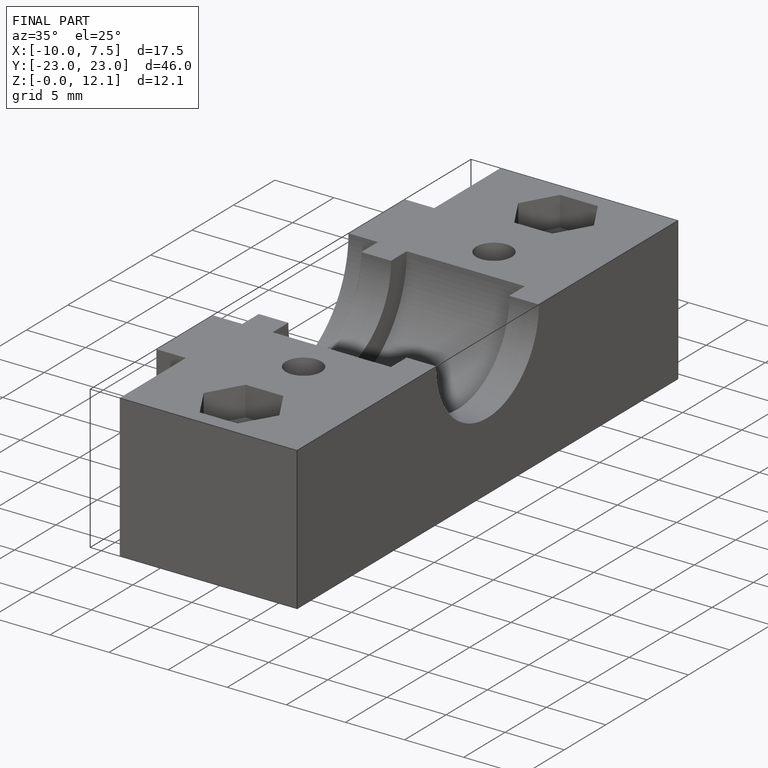
[diagram: finished part — iso view with bounding-box wireframe]
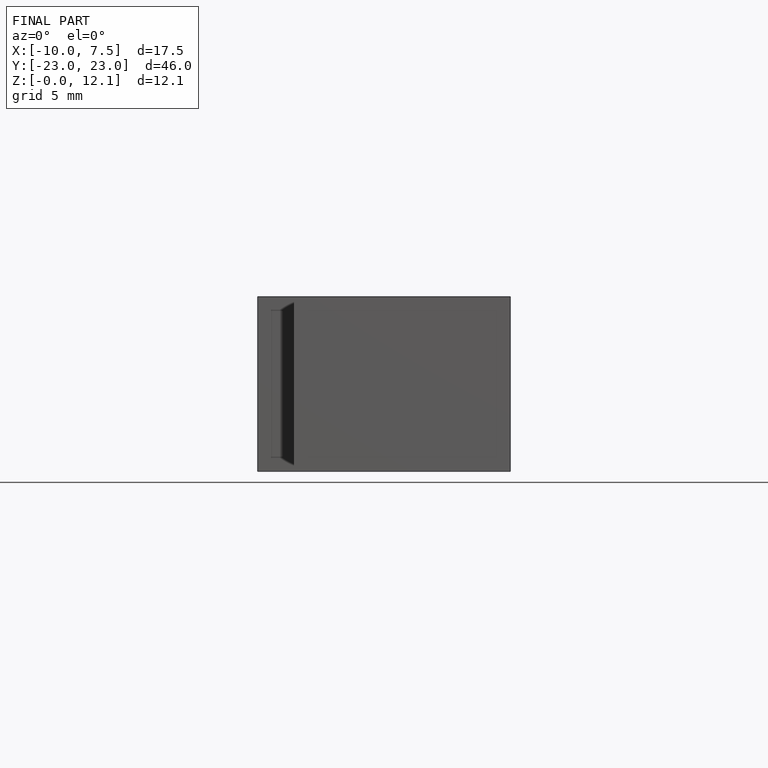
[diagram: finished part — front view with bounding-box wireframe]
